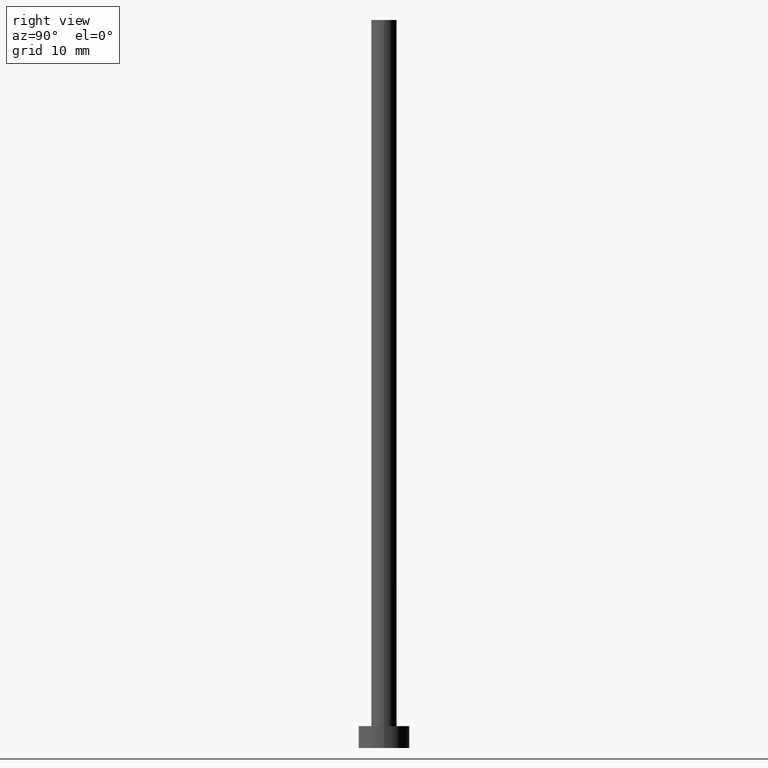
[diagram: clean part render]
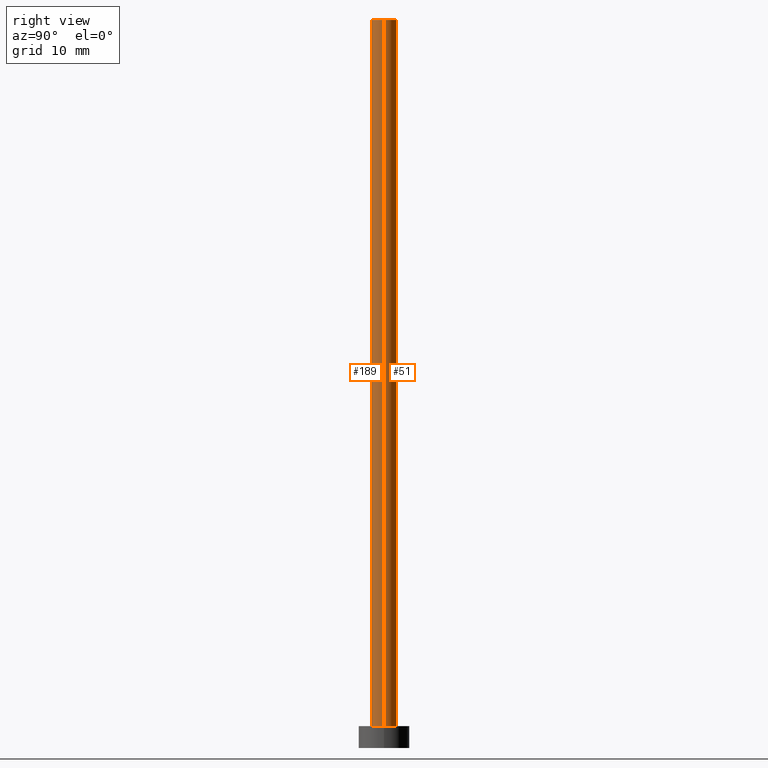
[diagram: same view with one multi-face feature highlighted, each face labeled with its STEP entity id]
A machine part, right view. The highlighted faces form ONE feature: a constant-radius fillet chain: 2 tangent blend faces with common blend radius 1.75 mm. The faces share edges in the B-rep.
Their STEP definitions:
[1] entity #189 (Cylinder):
#1 = AXIS2_PLACEMENT_3D ( 'NONE', #175, #68, #9 ) ;
#9 = DIRECTION ( 'NONE',  ( -1.000000000000000000, 0.000000000000000000, 0.000000000000000000 ) ) ;
#11 = AXIS2_PLACEMENT_3D ( 'NONE', #220, #44, #48 ) ;
#26 = CARTESIAN_POINT ( 'NONE',  ( -1.750000000000000000, 0.000000000000000000, 100.0000000000000000 ) ) ;
#40 = LINE ( 'NONE', #136, #75 ) ;
#43 = CIRCLE ( 'NONE', #182, 1.750000000000000000 ) ;
#44 = DIRECTION ( 'NONE',  ( 0.000000000000000000, 0.000000000000000000, 1.000000000000000000 ) ) ;
#47 = VECTOR ( 'NONE', #156, 1000.000000000000000 ) ;
#48 = DIRECTION ( 'NONE',  ( 1.000000000000000000, 0.000000000000000000, 0.000000000000000000 ) ) ;
#57 = DIRECTION ( 'NONE',  ( 0.000000000000000000, 0.000000000000000000, 1.000000000000000000 ) ) ;
#65 = ORIENTED_EDGE ( 'NONE', *, *, #149, .F. ) ;
#68 = DIRECTION ( 'NONE',  ( -0.000000000000000000, -0.000000000000000000, -1.000000000000000000 ) ) ;
#75 = VECTOR ( 'NONE', #176, 1000.000000000000000 ) ;
#80 = VERTEX_POINT ( 'NONE', #235 ) ;
#81 = EDGE_CURVE ( 'NONE', #80, #170, #43, .T. ) ;
#82 = LINE ( 'NONE', #139, #47 ) ;
#93 = EDGE_CURVE ( 'NONE', #106, #80, #40, .T. ) ;
#95 = ORIENTED_EDGE ( 'NONE', *, *, #93, .T. ) ;
#103 = FACE_OUTER_BOUND ( 'NONE', #178, .T. ) ;
#106 = VERTEX_POINT ( 'NONE', #26 ) ;
#130 = CARTESIAN_POINT ( 'NONE',  ( 0.000000000000000000, 0.000000000000000000, 3.000000000000000000 ) ) ;
#136 = CARTESIAN_POINT ( 'NONE',  ( -1.750000000000000000, 0.000000000000000000, 100.0000000000000000 ) ) ;
#139 = CARTESIAN_POINT ( 'NONE',  ( 1.750000000000000000, 2.143131898507867804E-16, 100.0000000000000000 ) ) ;
#149 = EDGE_CURVE ( 'NONE', #207, #170, #82, .T. ) ;
#154 = EDGE_CURVE ( 'NONE', #106, #207, #245, .T. ) ;
#156 = DIRECTION ( 'NONE',  ( -0.000000000000000000, -0.000000000000000000, -1.000000000000000000 ) ) ;
#159 = CYLINDRICAL_SURFACE ( 'NONE', #1, 1.750000000000000000 ) ;
#170 = VERTEX_POINT ( 'NONE', #249 ) ;
#175 = CARTESIAN_POINT ( 'NONE',  ( 0.000000000000000000, 0.000000000000000000, 100.0000000000000000 ) ) ;
#176 = DIRECTION ( 'NONE',  ( -0.000000000000000000, -0.000000000000000000, -1.000000000000000000 ) ) ;
#178 = EDGE_LOOP ( 'NONE', ( #65, #240, #95, #196 ) ) ;
#182 = AXIS2_PLACEMENT_3D ( 'NONE', #130, #57, #216 ) ;
#189 = ADVANCED_FACE ( 'NONE', ( #103 ), #159, .T. ) ;
#196 = ORIENTED_EDGE ( 'NONE', *, *, #81, .T. ) ;
#207 = VERTEX_POINT ( 'NONE', #247 ) ;
#216 = DIRECTION ( 'NONE',  ( 1.000000000000000000, 0.000000000000000000, 0.000000000000000000 ) ) ;
#220 = CARTESIAN_POINT ( 'NONE',  ( 0.000000000000000000, 0.000000000000000000, 100.0000000000000000 ) ) ;
#235 = CARTESIAN_POINT ( 'NONE',  ( -1.750000000000000000, 0.000000000000000000, 3.000000000000000000 ) ) ;
#240 = ORIENTED_EDGE ( 'NONE', *, *, #154, .F. ) ;
#245 = CIRCLE ( 'NONE', #11, 1.750000000000000000 ) ;
#247 = CARTESIAN_POINT ( 'NONE',  ( 1.750000000000000000, 2.143131898507867804E-16, 100.0000000000000000 ) ) ;
#249 = CARTESIAN_POINT ( 'NONE',  ( 1.750000000000000000, 2.143131898507867804E-16, 3.000000000000000000 ) ) ;
[2] entity #51 (Cylinder):
#16 = DIRECTION ( 'NONE',  ( -1.000000000000000000, 0.000000000000000000, 0.000000000000000000 ) ) ;
#26 = CARTESIAN_POINT ( 'NONE',  ( -1.750000000000000000, 0.000000000000000000, 100.0000000000000000 ) ) ;
#40 = LINE ( 'NONE', #136, #75 ) ;
#46 = DIRECTION ( 'NONE',  ( 1.000000000000000000, 0.000000000000000000, 0.000000000000000000 ) ) ;
#47 = VECTOR ( 'NONE', #156, 1000.000000000000000 ) ;
#51 = ADVANCED_FACE ( 'NONE', ( #164 ), #254, .T. ) ;
#62 = ORIENTED_EDGE ( 'NONE', *, *, #93, .F. ) ;
#72 = ORIENTED_EDGE ( 'NONE', *, *, #181, .F. ) ;
#75 = VECTOR ( 'NONE', #176, 1000.000000000000000 ) ;
#76 = CARTESIAN_POINT ( 'NONE',  ( 0.000000000000000000, 0.000000000000000000, 100.0000000000000000 ) ) ;
#80 = VERTEX_POINT ( 'NONE', #235 ) ;
#82 = LINE ( 'NONE', #139, #47 ) ;
#85 = CARTESIAN_POINT ( 'NONE',  ( 0.000000000000000000, 0.000000000000000000, 100.0000000000000000 ) ) ;
#88 = AXIS2_PLACEMENT_3D ( 'NONE', #85, #121, #46 ) ;
#93 = EDGE_CURVE ( 'NONE', #106, #80, #40, .T. ) ;
#104 = CIRCLE ( 'NONE', #88, 1.750000000000000000 ) ;
#106 = VERTEX_POINT ( 'NONE', #26 ) ;
#110 = EDGE_CURVE ( 'NONE', #170, #80, #183, .T. ) ;
#121 = DIRECTION ( 'NONE',  ( 0.000000000000000000, 0.000000000000000000, 1.000000000000000000 ) ) ;
#125 = DIRECTION ( 'NONE',  ( -0.000000000000000000, -0.000000000000000000, -1.000000000000000000 ) ) ;
#127 = AXIS2_PLACEMENT_3D ( 'NONE', #76, #125, #16 ) ;
#136 = CARTESIAN_POINT ( 'NONE',  ( -1.750000000000000000, 0.000000000000000000, 100.0000000000000000 ) ) ;
#139 = CARTESIAN_POINT ( 'NONE',  ( 1.750000000000000000, 2.143131898507867804E-16, 100.0000000000000000 ) ) ;
#141 = DIRECTION ( 'NONE',  ( 1.000000000000000000, 0.000000000000000000, 0.000000000000000000 ) ) ;
#142 = AXIS2_PLACEMENT_3D ( 'NONE', #218, #179, #141 ) ;
#149 = EDGE_CURVE ( 'NONE', #207, #170, #82, .T. ) ;
#153 = ORIENTED_EDGE ( 'NONE', *, *, #110, .T. ) ;
#156 = DIRECTION ( 'NONE',  ( -0.000000000000000000, -0.000000000000000000, -1.000000000000000000 ) ) ;
#164 = FACE_OUTER_BOUND ( 'NONE', #223, .T. ) ;
#170 = VERTEX_POINT ( 'NONE', #249 ) ;
#176 = DIRECTION ( 'NONE',  ( -0.000000000000000000, -0.000000000000000000, -1.000000000000000000 ) ) ;
#179 = DIRECTION ( 'NONE',  ( 0.000000000000000000, 0.000000000000000000, 1.000000000000000000 ) ) ;
#181 = EDGE_CURVE ( 'NONE', #207, #106, #104, .T. ) ;
#183 = CIRCLE ( 'NONE', #142, 1.750000000000000000 ) ;
#207 = VERTEX_POINT ( 'NONE', #247 ) ;
#218 = CARTESIAN_POINT ( 'NONE',  ( 0.000000000000000000, 0.000000000000000000, 3.000000000000000000 ) ) ;
#223 = EDGE_LOOP ( 'NONE', ( #72, #236, #153, #62 ) ) ;
#235 = CARTESIAN_POINT ( 'NONE',  ( -1.750000000000000000, 0.000000000000000000, 3.000000000000000000 ) ) ;
#236 = ORIENTED_EDGE ( 'NONE', *, *, #149, .T. ) ;
#247 = CARTESIAN_POINT ( 'NONE',  ( 1.750000000000000000, 2.143131898507867804E-16, 100.0000000000000000 ) ) ;
#249 = CARTESIAN_POINT ( 'NONE',  ( 1.750000000000000000, 2.143131898507867804E-16, 3.000000000000000000 ) ) ;
#254 = CYLINDRICAL_SURFACE ( 'NONE', #127, 1.750000000000000000 ) ;